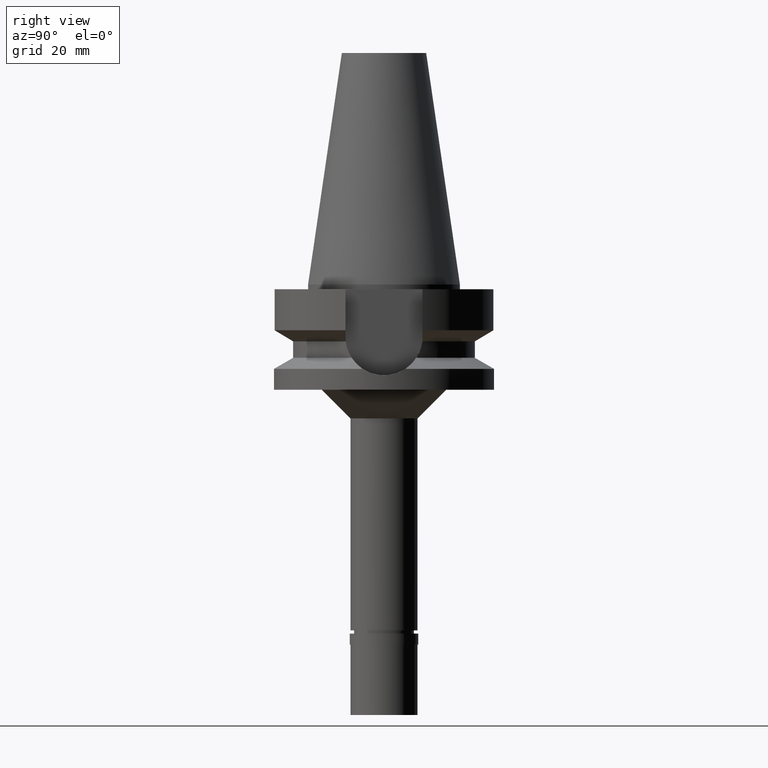
[diagram: clean part render]
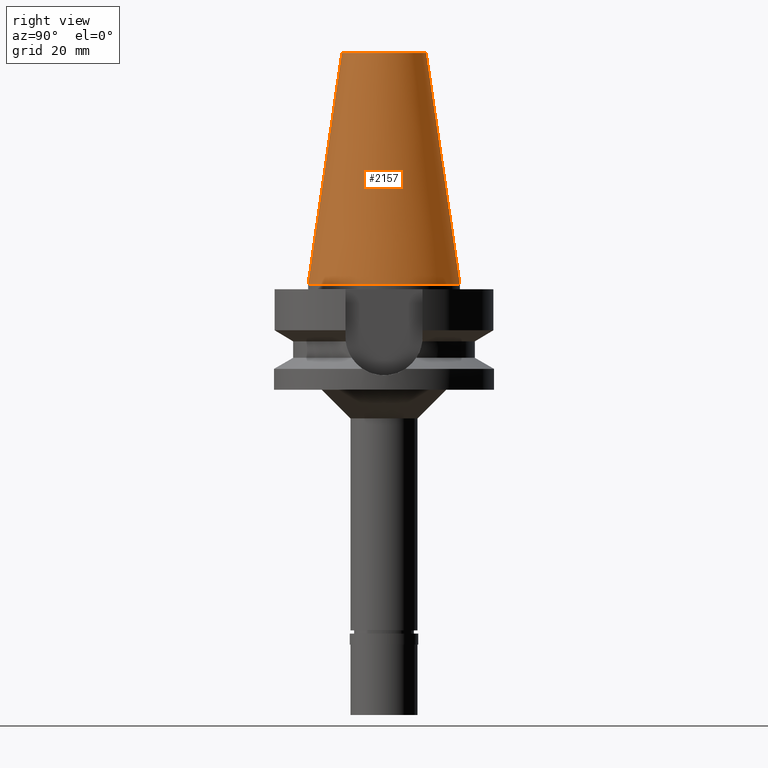
[diagram: same view with one face highlighted and labeled with its STEP entity id]
A machine part, right view. The second image highlights one B-rep face of the part: STEP entity #2157.
In plain terms, the highlighted conical surface has half-angle 8.297 deg.
Its self-contained STEP definition (entity closure, byte-faithful):
#7 = VERTEX_POINT ( 'NONE', #2281 ) ;
#278 = CARTESIAN_POINT ( 'NONE',  ( 0.0000000000000000000, 8.816791732783000768, 48.39999999999999858 ) ) ;
#300 = AXIS2_PLACEMENT_3D ( 'NONE', #1293, #1714, #2210 ) ;
#381 = AXIS2_PLACEMENT_3D ( 'NONE', #2060, #2713, #709 ) ;
#485 = DIRECTION ( 'NONE',  ( 0.0000000000000000000, 0.0000000000000000000, -1.000000000000000000 ) ) ;
#582 = VECTOR ( 'NONE', #1353, 1000.000000000000114 ) ;
#645 = VERTEX_POINT ( 'NONE', #1265 ) ;
#647 = ORIENTED_EDGE ( 'NONE', *, *, #2731, .T. ) ;
#709 = DIRECTION ( 'NONE',  ( 0.0000000000000000000, 1.000000000000000000, 0.0000000000000000000 ) ) ;
#755 = EDGE_LOOP ( 'NONE', ( #647, #1926, #1408, #1736 ) ) ;
#786 = CIRCLE ( 'NONE', #920, 15.87500000000000000 ) ;
#920 = AXIS2_PLACEMENT_3D ( 'NONE', #2729, #485, #937 ) ;
#937 = DIRECTION ( 'NONE',  ( 0.0000000000000000000, 1.000000000000000000, 0.0000000000000000000 ) ) ;
#947 = CIRCLE ( 'NONE', #381, 8.816791732783000768 ) ;
#1143 = DIRECTION ( 'NONE',  ( 0.0000000000000000000, -0.1443043893539925626, -0.9895333461855498891 ) ) ;
#1179 = VECTOR ( 'NONE', #1143, 1000.000000000000114 ) ;
#1265 = CARTESIAN_POINT ( 'NONE',  ( 0.0000000000000000000, -15.87500000000000000, -1.598721155459999993E-13 ) ) ;
#1293 = CARTESIAN_POINT ( 'NONE',  ( 0.0000000000000000000, 1.521011324540999938E-14, 24.19999999999999929 ) ) ;
#1352 = EDGE_CURVE ( 'NONE', #2475, #1968, #2280, .T. ) ;
#1353 = DIRECTION ( 'NONE',  ( 0.0000000000000000000, 0.1443043893539925626, -0.9895333461855498891 ) ) ;
#1371 = EDGE_CURVE ( 'NONE', #7, #645, #2265, .T. ) ;
#1408 = ORIENTED_EDGE ( 'NONE', *, *, #2693, .F. ) ;
#1474 = CARTESIAN_POINT ( 'NONE',  ( 0.0000000000000000000, 15.87500000000000000, -1.598721155459999993E-13 ) ) ;
#1553 = FACE_OUTER_BOUND ( 'NONE', #755, .T. ) ;
#1714 = DIRECTION ( 'NONE',  ( 0.0000000000000000000, 0.0000000000000000000, -1.000000000000000000 ) ) ;
#1732 = CARTESIAN_POINT ( 'NONE',  ( 0.0000000000000000000, 8.816791732783000768, 48.39999999999999858 ) ) ;
#1736 = ORIENTED_EDGE ( 'NONE', *, *, #1352, .F. ) ;
#1926 = ORIENTED_EDGE ( 'NONE', *, *, #1371, .T. ) ;
#1968 = VERTEX_POINT ( 'NONE', #1474 ) ;
#2060 = CARTESIAN_POINT ( 'NONE',  ( 0.0000000000000000000, 1.521011324540999938E-14, 48.39999999999999858 ) ) ;
#2157 = ADVANCED_FACE ( 'NONE', ( #1553 ), #2794, .T. ) ;
#2210 = DIRECTION ( 'NONE',  ( 0.0000000000000000000, -1.000000000000000000, 0.0000000000000000000 ) ) ;
#2265 = LINE ( 'NONE', #2708, #1179 ) ;
#2280 = LINE ( 'NONE', #278, #582 ) ;
#2281 = CARTESIAN_POINT ( 'NONE',  ( 0.0000000000000000000, -8.816791732783000768, 48.39999999999999858 ) ) ;
#2475 = VERTEX_POINT ( 'NONE', #1732 ) ;
#2693 = EDGE_CURVE ( 'NONE', #1968, #645, #786, .T. ) ;
#2708 = CARTESIAN_POINT ( 'NONE',  ( 0.0000000000000000000, -8.816791732783000768, 48.39999999999999858 ) ) ;
#2713 = DIRECTION ( 'NONE',  ( 0.0000000000000000000, 0.0000000000000000000, -1.000000000000000000 ) ) ;
#2729 = CARTESIAN_POINT ( 'NONE',  ( 0.0000000000000000000, 1.521011324540999938E-14, -3.694822225953000089E-13 ) ) ;
#2731 = EDGE_CURVE ( 'NONE', #2475, #7, #947, .T. ) ;
#2794 = CONICAL_SURFACE ( 'NONE', #300, 12.34589586639000025, 0.1448099680379422438 ) ;